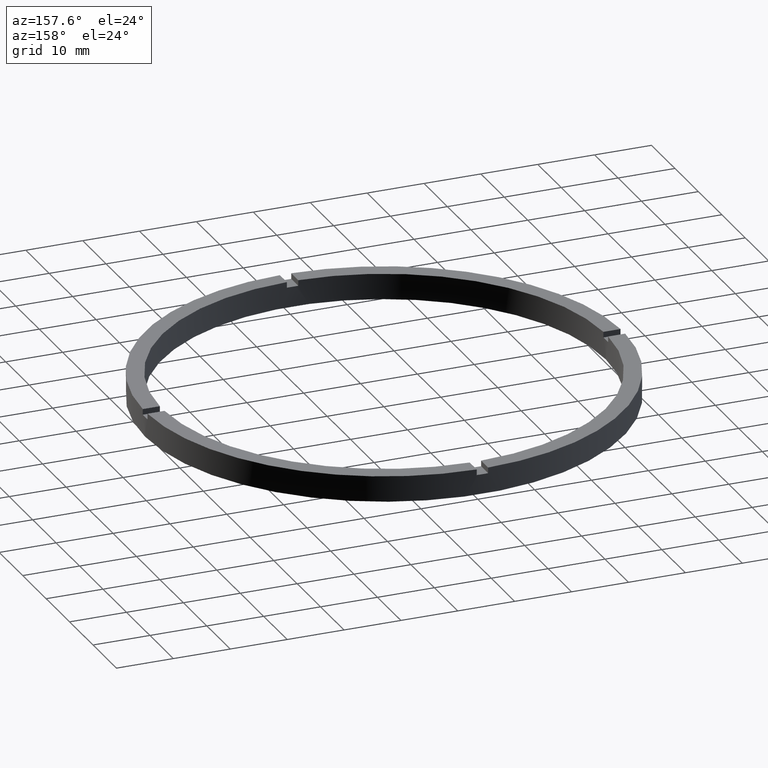
[diagram: clean part render]
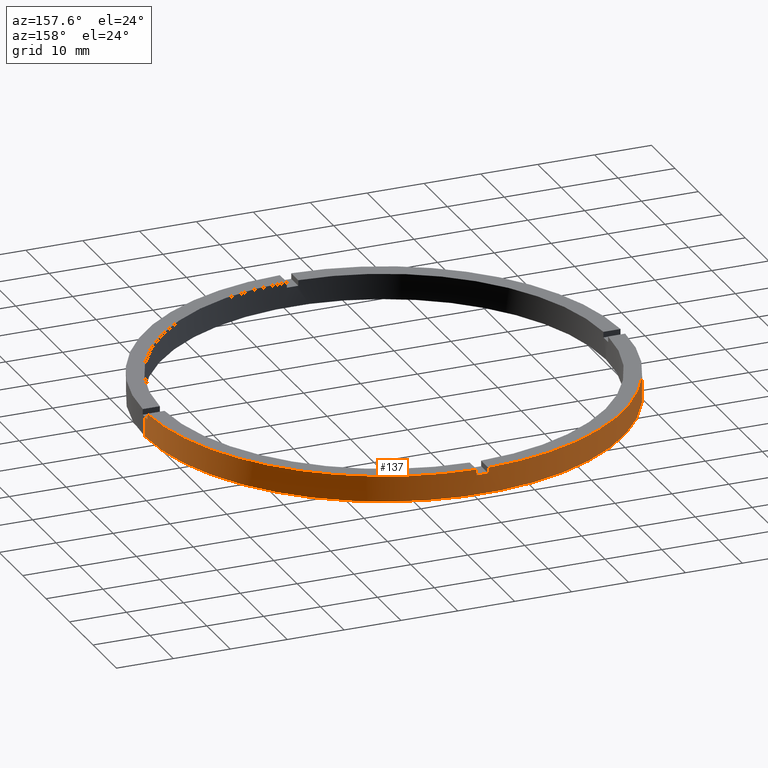
[diagram: same view with one face highlighted and labeled with its STEP entity id]
A machine part, auxiliary view. The second image highlights one B-rep face of the part: STEP entity #137.
In plain terms, the highlighted cylindrical surface (partial cylindrical patch) has radius 42 mm, axis along (-0, -0, -1).
Its self-contained STEP definition (entity closure, byte-faithful):
#3 = AXIS2_PLACEMENT_3D ( 'NONE', #343, #192, #351 ) ;
#12 = DIRECTION ( 'NONE',  ( 0.000000000000000000, 0.000000000000000000, 1.000000000000000000 ) ) ;
#17 = EDGE_LOOP ( 'NONE', ( #44, #288, #305, #42, #549, #563, #669, #557, #371, #126, #556, #259 ) ) ;
#42 = ORIENTED_EDGE ( 'NONE', *, *, #655, .F. ) ;
#43 = VERTEX_POINT ( 'NONE', #302 ) ;
#44 = ORIENTED_EDGE ( 'NONE', *, *, #628, .F. ) ;
#49 = CARTESIAN_POINT ( 'NONE',  ( 0.000000000000000000, 0.000000000000000000, 0.000000000000000000 ) ) ;
#50 = DIRECTION ( 'NONE',  ( -0.000000000000000000, -0.000000000000000000, -1.000000000000000000 ) ) ;
#63 = EDGE_CURVE ( 'NONE', #103, #262, #375, .T. ) ;
#76 = EDGE_CURVE ( 'NONE', #258, #304, #384, .T. ) ;
#95 = DIRECTION ( 'NONE',  ( 1.000000000000000000, 0.000000000000000000, 0.000000000000000000 ) ) ;
#103 = VERTEX_POINT ( 'NONE', #686 ) ;
#122 = DIRECTION ( 'NONE',  ( 0.000000000000000000, 0.000000000000000000, 1.000000000000000000 ) ) ;
#126 = ORIENTED_EDGE ( 'NONE', *, *, #203, .T. ) ;
#137 = ADVANCED_FACE ( 'NONE', ( #161 ), #143, .T. ) ;
#139 = CIRCLE ( 'NONE', #509, 42.00000000000000000 ) ;
#143 = CYLINDRICAL_SURFACE ( 'NONE', #451, 42.00000000000000000 ) ;
#149 = LINE ( 'NONE', #722, #696 ) ;
#161 = FACE_OUTER_BOUND ( 'NONE', #17, .T. ) ;
#188 = DIRECTION ( 'NONE',  ( -0.000000000000000000, -0.000000000000000000, -1.000000000000000000 ) ) ;
#192 = DIRECTION ( 'NONE',  ( 0.000000000000000000, -0.000000000000000000, 1.000000000000000000 ) ) ;
#194 = DIRECTION ( 'NONE',  ( 1.000000000000000000, 0.000000000000000000, 0.000000000000000000 ) ) ;
#199 = VERTEX_POINT ( 'NONE', #465 ) ;
#201 = EDGE_CURVE ( 'NONE', #304, #553, #398, .T. ) ;
#202 = DIRECTION ( 'NONE',  ( 1.000000000000000000, 0.000000000000000000, 0.000000000000000000 ) ) ;
#203 = EDGE_CURVE ( 'NONE', #501, #199, #149, .T. ) ;
#225 = CARTESIAN_POINT ( 'NONE',  ( 0.000000000000000000, 0.000000000000000000, 4.500000000000000000 ) ) ;
#227 = CARTESIAN_POINT ( 'NONE',  ( 42.00000000000000000, 5.143516556418883322E-15, 0.000000000000000000 ) ) ;
#230 = DIRECTION ( 'NONE',  ( 0.000000000000000000, 0.000000000000000000, 1.000000000000000000 ) ) ;
#243 = CARTESIAN_POINT ( 'NONE',  ( 0.000000000000000000, 0.000000000000000000, 3.499999999999999556 ) ) ;
#248 = CARTESIAN_POINT ( 'NONE',  ( 42.00000000000000000, 5.143516556418883322E-15, 4.500000000000000000 ) ) ;
#249 = EDGE_CURVE ( 'NONE', #372, #496, #419, .T. ) ;
#256 = DIRECTION ( 'NONE',  ( -0.000000000000000000, -0.000000000000000000, -1.000000000000000000 ) ) ;
#258 = VERTEX_POINT ( 'NONE', #306 ) ;
#259 = ORIENTED_EDGE ( 'NONE', *, *, #671, .T. ) ;
#261 = CARTESIAN_POINT ( 'NONE',  ( -41.98809355043403713, 0.9999999999999709122, 3.499999999999999556 ) ) ;
#262 = VERTEX_POINT ( 'NONE', #623 ) ;
#266 = CARTESIAN_POINT ( 'NONE',  ( 0.000000000000000000, 0.000000000000000000, 4.500000000000000000 ) ) ;
#276 = VECTOR ( 'NONE', #664, 1000.000000000000000 ) ;
#288 = ORIENTED_EDGE ( 'NONE', *, *, #76, .T. ) ;
#301 = AXIS2_PLACEMENT_3D ( 'NONE', #49, #727, #519 ) ;
#302 = CARTESIAN_POINT ( 'NONE',  ( 41.98809355043403713, 0.9999999999998434586, 4.500000000000000000 ) ) ;
#304 = VERTEX_POINT ( 'NONE', #227 ) ;
#305 = ORIENTED_EDGE ( 'NONE', *, *, #201, .T. ) ;
#306 = CARTESIAN_POINT ( 'NONE',  ( 42.00000000000000000, 5.143516556418883322E-15, 3.499999999999999556 ) ) ;
#311 = CIRCLE ( 'NONE', #3, 42.00000000000000000 ) ;
#325 = CARTESIAN_POINT ( 'NONE',  ( -42.00000000000000000, 0.000000000000000000, 0.000000000000000000 ) ) ;
#329 = LINE ( 'NONE', #383, #585 ) ;
#344 = DIRECTION ( 'NONE',  ( 1.000000000000000000, 0.000000000000000000, 0.000000000000000000 ) ) ;
#343 = CARTESIAN_POINT ( 'NONE',  ( 0.000000000000000000, 0.000000000000000000, 3.499999999999999556 ) ) ;
#346 = CARTESIAN_POINT ( 'NONE',  ( -42.00000000000000000, 0.000000000000000000, 4.500000000000000000 ) ) ;
#351 = DIRECTION ( 'NONE',  ( 1.000000000000000000, 0.000000000000000000, 0.000000000000000000 ) ) ;
#363 = DIRECTION ( 'NONE',  ( -0.000000000000000000, -0.000000000000000000, -1.000000000000000000 ) ) ;
#366 = VECTOR ( 'NONE', #363, 1000.000000000000000 ) ;
#371 = ORIENTED_EDGE ( 'NONE', *, *, #753, .F. ) ;
#372 = VERTEX_POINT ( 'NONE', #261 ) ;
#375 = CIRCLE ( 'NONE', #751, 42.00000000000000000 ) ;
#383 = CARTESIAN_POINT ( 'NONE',  ( -1.000000000000025757, 41.98809355043403713, 4.500000000000000000 ) ) ;
#384 = LINE ( 'NONE', #248, #366 ) ;
#388 = CARTESIAN_POINT ( 'NONE',  ( 41.98809355043403713, 0.9999999999998434586, 3.499999999999999556 ) ) ;
#398 = CIRCLE ( 'NONE', #301, 42.00000000000000000 ) ;
#419 = CIRCLE ( 'NONE', #674, 42.00000000000000000 ) ;
#439 = LINE ( 'NONE', #346, #716 ) ;
#440 = VECTOR ( 'NONE', #230, 1000.000000000000000 ) ;
#451 = AXIS2_PLACEMENT_3D ( 'NONE', #605, #188, #481 ) ;
#455 = LINE ( 'NONE', #568, #440 ) ;
#460 = CARTESIAN_POINT ( 'NONE',  ( -42.00000000000000000, 0.000000000000000000, 3.499999999999999556 ) ) ;
#465 = CARTESIAN_POINT ( 'NONE',  ( 0.9999999999999742428, 41.98809355043403713, 4.500000000000000000 ) ) ;
#476 = EDGE_CURVE ( 'NONE', #43, #199, #139, .T. ) ;
#481 = DIRECTION ( 'NONE',  ( -1.000000000000000000, 0.000000000000000000, 0.000000000000000000 ) ) ;
#493 = VERTEX_POINT ( 'NONE', #388 ) ;
#496 = VERTEX_POINT ( 'NONE', #460 ) ;
#500 = AXIS2_PLACEMENT_3D ( 'NONE', #610, #668, #344 ) ;
#501 = VERTEX_POINT ( 'NONE', #580 ) ;
#505 = CARTESIAN_POINT ( 'NONE',  ( -1.000000000000025757, 41.98809355043403713, 3.499999999999999556 ) ) ;
#509 = AXIS2_PLACEMENT_3D ( 'NONE', #225, #758, #95 ) ;
#519 = DIRECTION ( 'NONE',  ( 1.000000000000000000, 0.000000000000000000, 0.000000000000000000 ) ) ;
#527 = CARTESIAN_POINT ( 'NONE',  ( 41.98809355043403713, 0.9999999999998434586, 4.500000000000000000 ) ) ;
#539 = EDGE_CURVE ( 'NONE', #372, #262, #455, .T. ) ;
#549 = ORIENTED_EDGE ( 'NONE', *, *, #249, .F. ) ;
#553 = VERTEX_POINT ( 'NONE', #325 ) ;
#556 = ORIENTED_EDGE ( 'NONE', *, *, #476, .F. ) ;
#557 = ORIENTED_EDGE ( 'NONE', *, *, #739, .T. ) ;
#563 = ORIENTED_EDGE ( 'NONE', *, *, #539, .T. ) ;
#568 = CARTESIAN_POINT ( 'NONE',  ( -41.98809355043403713, 0.9999999999999709122, 4.500000000000000000 ) ) ;
#580 = CARTESIAN_POINT ( 'NONE',  ( 0.9999999999999742428, 41.98809355043403713, 3.499999999999999556 ) ) ;
#585 = VECTOR ( 'NONE', #256, 1000.000000000000000 ) ;
#595 = DIRECTION ( 'NONE',  ( 0.000000000000000000, 0.000000000000000000, 1.000000000000000000 ) ) ;
#605 = CARTESIAN_POINT ( 'NONE',  ( 0.000000000000000000, 0.000000000000000000, 4.500000000000000000 ) ) ;
#610 = CARTESIAN_POINT ( 'NONE',  ( 0.000000000000000000, 0.000000000000000000, 3.499999999999999556 ) ) ;
#623 = CARTESIAN_POINT ( 'NONE',  ( -41.98809355043403713, 0.9999999999999709122, 4.500000000000000000 ) ) ;
#628 = EDGE_CURVE ( 'NONE', #258, #493, #717, .T. ) ;
#655 = EDGE_CURVE ( 'NONE', #496, #553, #439, .T. ) ;
#664 = DIRECTION ( 'NONE',  ( -0.000000000000000000, -0.000000000000000000, -1.000000000000000000 ) ) ;
#668 = DIRECTION ( 'NONE',  ( 0.000000000000000000, 0.000000000000000000, 1.000000000000000000 ) ) ;
#669 = ORIENTED_EDGE ( 'NONE', *, *, #63, .F. ) ;
#671 = EDGE_CURVE ( 'NONE', #43, #493, #709, .T. ) ;
#674 = AXIS2_PLACEMENT_3D ( 'NONE', #243, #122, #194 ) ;
#686 = CARTESIAN_POINT ( 'NONE',  ( -1.000000000000025757, 41.98809355043403713, 4.500000000000000000 ) ) ;
#696 = VECTOR ( 'NONE', #595, 1000.000000000000000 ) ;
#709 = LINE ( 'NONE', #527, #276 ) ;
#716 = VECTOR ( 'NONE', #50, 1000.000000000000000 ) ;
#717 = CIRCLE ( 'NONE', #500, 42.00000000000000000 ) ;
#722 = CARTESIAN_POINT ( 'NONE',  ( 0.9999999999999742428, 41.98809355043403713, 4.500000000000000000 ) ) ;
#727 = DIRECTION ( 'NONE',  ( 0.000000000000000000, 0.000000000000000000, 1.000000000000000000 ) ) ;
#729 = VERTEX_POINT ( 'NONE', #505 ) ;
#739 = EDGE_CURVE ( 'NONE', #103, #729, #329, .T. ) ;
#751 = AXIS2_PLACEMENT_3D ( 'NONE', #266, #12, #202 ) ;
#753 = EDGE_CURVE ( 'NONE', #501, #729, #311, .T. ) ;
#758 = DIRECTION ( 'NONE',  ( 0.000000000000000000, 0.000000000000000000, 1.000000000000000000 ) ) ;